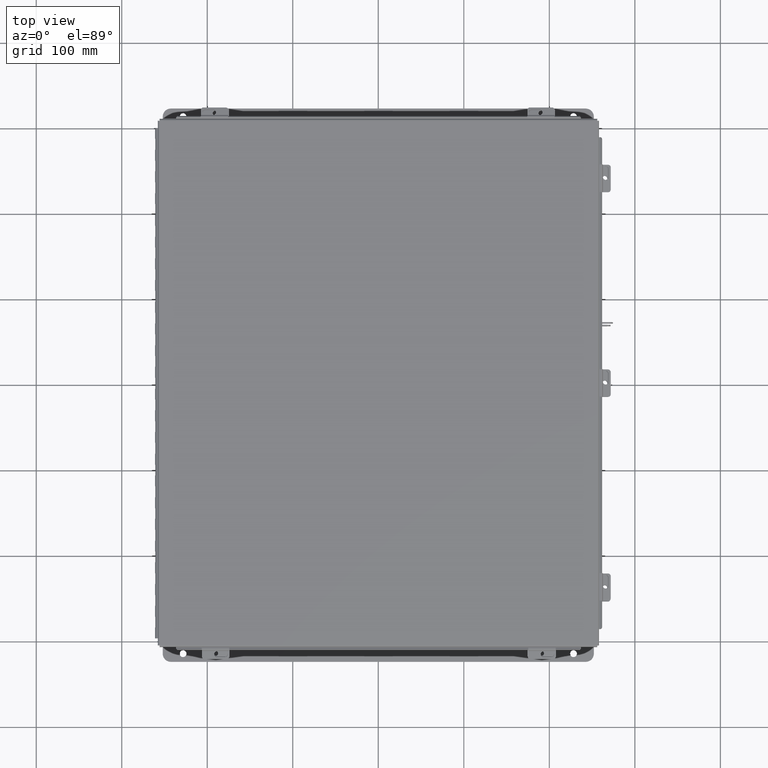
[diagram: clean part render]
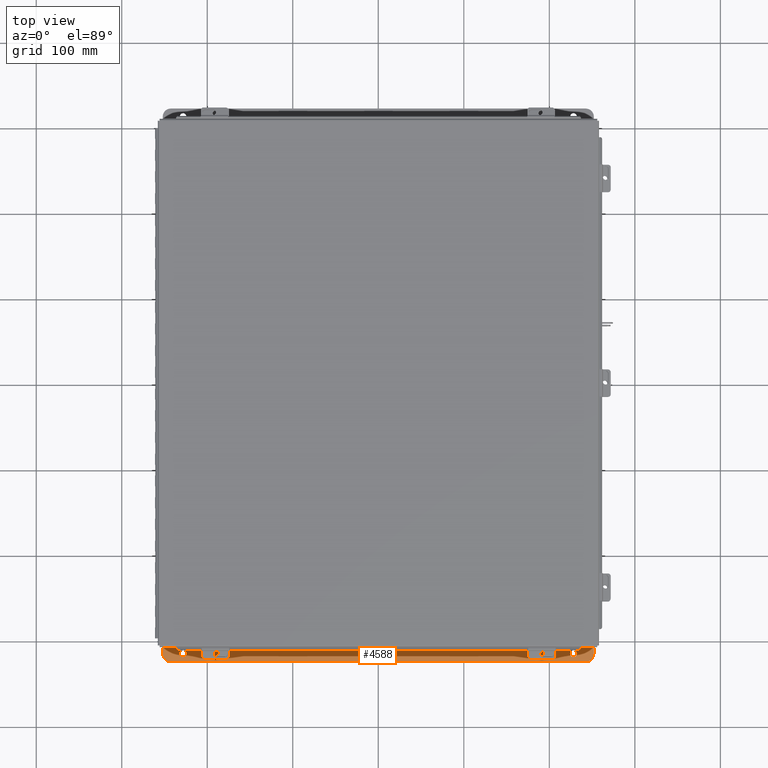
[diagram: same view with one face highlighted and labeled with its STEP entity id]
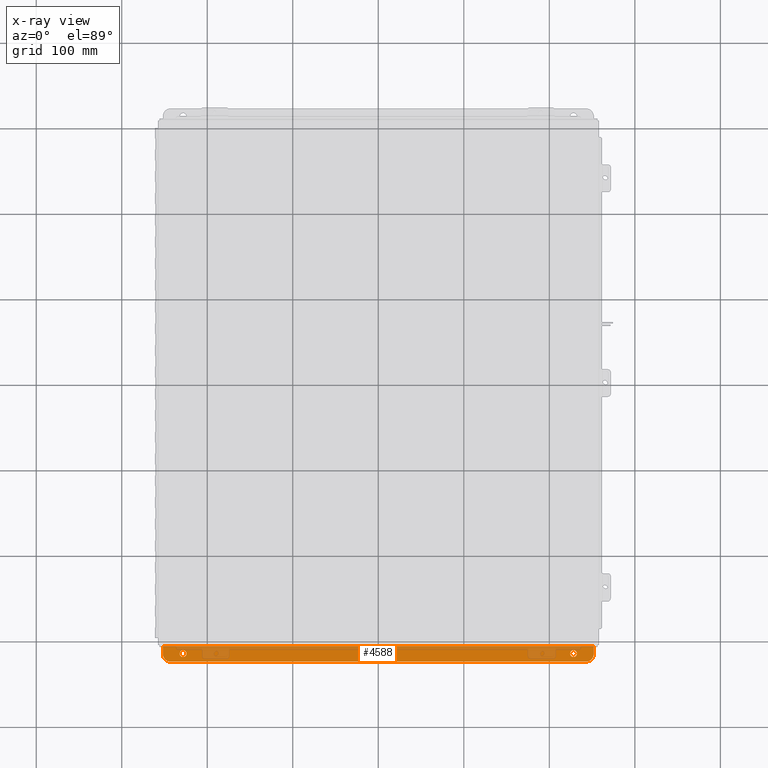
[diagram: x-ray of the same camera — body ghosted, the highlighted face saturated]
A machine part, top view. The second image highlights one B-rep face of the part: STEP entity #4588.
The next image is the same camera in x-ray: the body ghosted, the highlighted face saturated — about 32% of this face is hidden behind the body in this view.
In plain terms, the highlighted planar face has unit normal (0, -0, 1).
Its self-contained STEP definition (entity closure, byte-faithful):
#278 = DIRECTION ( 'NONE',  ( 0.0000000000000000000, 3.702694488566362300E-015, 1.000000000000000000 ) ) ;
#554 = AXIS2_PLACEMENT_3D ( 'NONE', #21182, #9657, #23102 ) ;
#1206 = LINE ( 'NONE', #12565, #15881 ) ;
#1910 = CARTESIAN_POINT ( 'NONE',  ( -9.925299999999980500, 0.7377999999999989000, -3.112300000000003000 ) ) ;
#2103 = PLANE ( 'NONE',  #7040 ) ;
#2105 = VECTOR ( 'NONE', #7172, 39.37007874015748100 ) ;
#2379 = CIRCLE ( 'NONE', #16302, 0.3750000000000000600 ) ;
#2436 = LINE ( 'NONE', #1910, #17110 ) ;
#3830 = DIRECTION ( 'NONE',  ( 4.919856193148104900E-031, 1.000000000000000000, -3.702694488566362300E-015 ) ) ;
#4330 = DIRECTION ( 'NONE',  ( -0.0000000000000000000, -3.702694488566362300E-015, -1.000000000000000000 ) ) ;
#4337 = CARTESIAN_POINT ( 'NONE',  ( 9.550300000000008900, 0.3628000000000008400, -3.112299999999996700 ) ) ;
#4359 = VERTEX_POINT ( 'NONE', #6186 ) ;
#4475 = CARTESIAN_POINT ( 'NONE',  ( -8.987799999999985800, 0.5187999999999988200, -3.112299999999997200 ) ) ;
#4588 = ADVANCED_FACE ( 'NONE', ( #4630, #14788, #9674 ), #2103, .T. ) ;
#4630 = FACE_BOUND ( 'NONE', #19217, .T. ) ;
#4726 = EDGE_CURVE ( 'NONE', #19036, #15594, #17514, .T. ) ;
#4891 = VERTEX_POINT ( 'NONE', #16397 ) ;
#4899 = ORIENTED_EDGE ( 'NONE', *, *, #14162, .F. ) ;
#5139 = DIRECTION ( 'NONE',  ( -0.0000000000000000000, -3.702694488566362300E-015, -1.000000000000000000 ) ) ;
#5148 = CARTESIAN_POINT ( 'NONE',  ( -9.550299999999989400, 0.7377999999999989000, -3.112299999999998500 ) ) ;
#5187 = EDGE_CURVE ( 'NONE', #21359, #14196, #2436, .T. ) ;
#5373 = EDGE_CURVE ( 'NONE', #5839, #14196, #17975, .T. ) ;
#5796 = EDGE_CURVE ( 'NONE', #5839, #4891, #1206, .T. ) ;
#5839 = VERTEX_POINT ( 'NONE', #5148 ) ;
#6019 = EDGE_LOOP ( 'NONE', ( #11455, #19615, #15290, #19042, #4899, #11539 ) ) ;
#6112 = ORIENTED_EDGE ( 'NONE', *, *, #4726, .T. ) ;
#6186 = CARTESIAN_POINT ( 'NONE',  ( 8.987800000000008900, 0.5188000000000010400, -3.112300000000001600 ) ) ;
#6222 = DIRECTION ( 'NONE',  ( 0.0000000000000000000, -1.000000000000000000, 4.370956789862820400E-015 ) ) ;
#6852 = CARTESIAN_POINT ( 'NONE',  ( -9.925299999999980500, 0.3627999999999986800, -3.112299999999996700 ) ) ;
#7040 = AXIS2_PLACEMENT_3D ( 'NONE', #7825, #278, #13592 ) ;
#7065 = VERTEX_POINT ( 'NONE', #10167 ) ;
#7172 = DIRECTION ( 'NONE',  ( -1.000000000000000000, -4.910036603141682400E-031, 0.0000000000000000000 ) ) ;
#7534 = VERTEX_POINT ( 'NONE', #20018 ) ;
#7825 = CARTESIAN_POINT ( 'NONE',  ( -2.035385365534024800E-024, -1.092739197465705300E-014, -3.112299999999999800 ) ) ;
#8023 = EDGE_LOOP ( 'NONE', ( #13205, #16625 ) ) ;
#8207 = EDGE_CURVE ( 'NONE', #7065, #4891, #2379, .T. ) ;
#9085 = ORIENTED_EDGE ( 'NONE', *, *, #23561, .T. ) ;
#9657 = DIRECTION ( 'NONE',  ( 0.0000000000000000000, 3.702694488566362300E-015, 1.000000000000000000 ) ) ;
#9674 = FACE_OUTER_BOUND ( 'NONE', #6019, .T. ) ;
#9715 = CIRCLE ( 'NONE', #17181, 0.1560000000000001700 ) ;
#10165 = DIRECTION ( 'NONE',  ( -0.0000000000000000000, -3.702694488566362300E-015, -1.000000000000000000 ) ) ;
#10167 = CARTESIAN_POINT ( 'NONE',  ( 9.925300000000017800, 0.3628000000000008400, -3.112300000000001200 ) ) ;
#10627 = EDGE_CURVE ( 'NONE', #21704, #21359, #12226, .T. ) ;
#10998 = DIRECTION ( 'NONE',  ( -0.0000000000000000000, -3.702694488566362300E-015, -1.000000000000000000 ) ) ;
#11455 = ORIENTED_EDGE ( 'NONE', *, *, #5796, .F. ) ;
#11539 = ORIENTED_EDGE ( 'NONE', *, *, #8207, .T. ) ;
#12226 = LINE ( 'NONE', #24468, #2105 ) ;
#12312 = VECTOR ( 'NONE', #12460, 39.37007874015748100 ) ;
#12460 = DIRECTION ( 'NONE',  ( -4.919856193148104900E-031, -1.000000000000000000, 3.702694488566362300E-015 ) ) ;
#12565 = CARTESIAN_POINT ( 'NONE',  ( 9.925300000000017800, 0.7378000000000011200, -3.112300000000003000 ) ) ;
#12582 = CIRCLE ( 'NONE', #13525, 0.1560000000000001700 ) ;
#12642 = DIRECTION ( 'NONE',  ( 1.000000000000000000, 4.910036603141682400E-031, -0.0000000000000000000 ) ) ;
#13205 = ORIENTED_EDGE ( 'NONE', *, *, #19388, .T. ) ;
#13299 = CIRCLE ( 'NONE', #14383, 0.1560000000000001700 ) ;
#13462 = EDGE_CURVE ( 'NONE', #7534, #4359, #9715, .T. ) ;
#13525 = AXIS2_PLACEMENT_3D ( 'NONE', #22495, #10998, #24432 ) ;
#13592 = DIRECTION ( 'NONE',  ( -4.919856193148104900E-031, -1.000000000000000000, 3.702694488566362300E-015 ) ) ;
#14162 = EDGE_CURVE ( 'NONE', #7065, #21704, #17462, .T. ) ;
#14196 = VERTEX_POINT ( 'NONE', #6852 ) ;
#14383 = AXIS2_PLACEMENT_3D ( 'NONE', #15807, #4330, #17718 ) ;
#14757 = AXIS2_PLACEMENT_3D ( 'NONE', #21675, #10165, #23604 ) ;
#14788 = FACE_BOUND ( 'NONE', #8023, .T. ) ;
#15107 = CARTESIAN_POINT ( 'NONE',  ( 9.925300000000000000, 0.01300000000000010700, -3.112299999999995800 ) ) ;
#15290 = ORIENTED_EDGE ( 'NONE', *, *, #5187, .F. ) ;
#15594 = VERTEX_POINT ( 'NONE', #4475 ) ;
#15674 = CARTESIAN_POINT ( 'NONE',  ( -8.987799999999985800, 0.2067999999999984900, -3.112299999999996300 ) ) ;
#15807 = CARTESIAN_POINT ( 'NONE',  ( -8.987799999999985800, 0.3627999999999986800, -3.112299999999996700 ) ) ;
#15881 = VECTOR ( 'NONE', #12642, 39.37007874015748100 ) ;
#16285 = CARTESIAN_POINT ( 'NONE',  ( 9.925300000000000000, 0.0000000000000000000, -3.112299999999995800 ) ) ;
#16302 = AXIS2_PLACEMENT_3D ( 'NONE', #4337, #17724, #6222 ) ;
#16397 = CARTESIAN_POINT ( 'NONE',  ( 9.550300000000008900, 0.7378000000000011200, -3.112300000000003000 ) ) ;
#16625 = ORIENTED_EDGE ( 'NONE', *, *, #13462, .T. ) ;
#16630 = CARTESIAN_POINT ( 'NONE',  ( 8.987800000000008900, 0.3628000000000008400, -3.112300000000001200 ) ) ;
#17110 = VECTOR ( 'NONE', #3830, 39.37007874015748100 ) ;
#17181 = AXIS2_PLACEMENT_3D ( 'NONE', #16630, #5139, #18532 ) ;
#17462 = LINE ( 'NONE', #16285, #12312 ) ;
#17514 = CIRCLE ( 'NONE', #14757, 0.1560000000000001700 ) ;
#17718 = DIRECTION ( 'NONE',  ( 0.0000000000000000000, -1.000000000000000000, 3.502369222646487400E-015 ) ) ;
#17724 = DIRECTION ( 'NONE',  ( 0.0000000000000000000, 3.702694488566362300E-015, 1.000000000000000000 ) ) ;
#17975 = CIRCLE ( 'NONE', #554, 0.3750000000000000600 ) ;
#18532 = DIRECTION ( 'NONE',  ( 0.0000000000000000000, -1.000000000000000000, 3.502369222646487400E-015 ) ) ;
#19036 = VERTEX_POINT ( 'NONE', #15674 ) ;
#19042 = ORIENTED_EDGE ( 'NONE', *, *, #10627, .F. ) ;
#19217 = EDGE_LOOP ( 'NONE', ( #9085, #6112 ) ) ;
#19388 = EDGE_CURVE ( 'NONE', #4359, #7534, #12582, .T. ) ;
#19615 = ORIENTED_EDGE ( 'NONE', *, *, #5373, .T. ) ;
#20018 = CARTESIAN_POINT ( 'NONE',  ( 8.987800000000008900, 0.2068000000000006800, -3.112300000000000700 ) ) ;
#21182 = CARTESIAN_POINT ( 'NONE',  ( -9.550299999999989400, 0.3627999999999986800, -3.112300000000001200 ) ) ;
#21359 = VERTEX_POINT ( 'NONE', #21671 ) ;
#21671 = CARTESIAN_POINT ( 'NONE',  ( -9.925299999999992900, 0.01299999999999792100, -3.112299999999999800 ) ) ;
#21675 = CARTESIAN_POINT ( 'NONE',  ( -8.987799999999985800, 0.3627999999999986800, -3.112299999999996700 ) ) ;
#21704 = VERTEX_POINT ( 'NONE', #15107 ) ;
#22495 = CARTESIAN_POINT ( 'NONE',  ( 8.987800000000008900, 0.3628000000000008400, -3.112300000000001200 ) ) ;
#23102 = DIRECTION ( 'NONE',  ( 0.0000000000000000000, -1.000000000000000000, 4.370956789862820400E-015 ) ) ;
#23561 = EDGE_CURVE ( 'NONE', #15594, #19036, #13299, .T. ) ;
#23604 = DIRECTION ( 'NONE',  ( 0.0000000000000000000, -1.000000000000000000, 3.502369222646487400E-015 ) ) ;
#24432 = DIRECTION ( 'NONE',  ( 0.0000000000000000000, -1.000000000000000000, 3.502369222646487400E-015 ) ) ;
#24468 = CARTESIAN_POINT ( 'NONE',  ( 9.925300000000000000, 0.01300000000000010700, -3.112299999999995800 ) ) ;